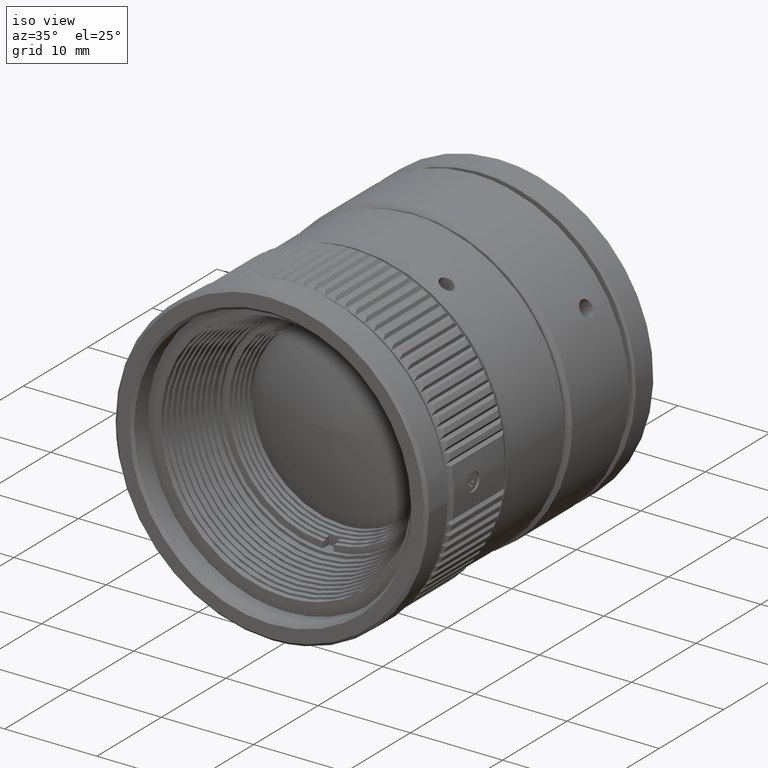
[diagram: clean part render]
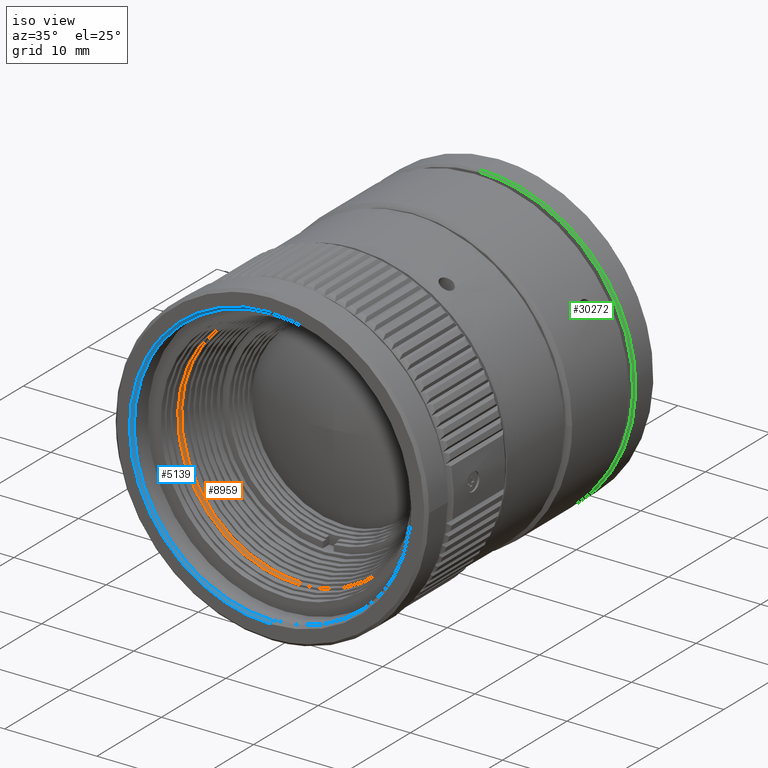
[diagram: same view with three faces highlighted in distinct colors, each labeled with its STEP entity id]
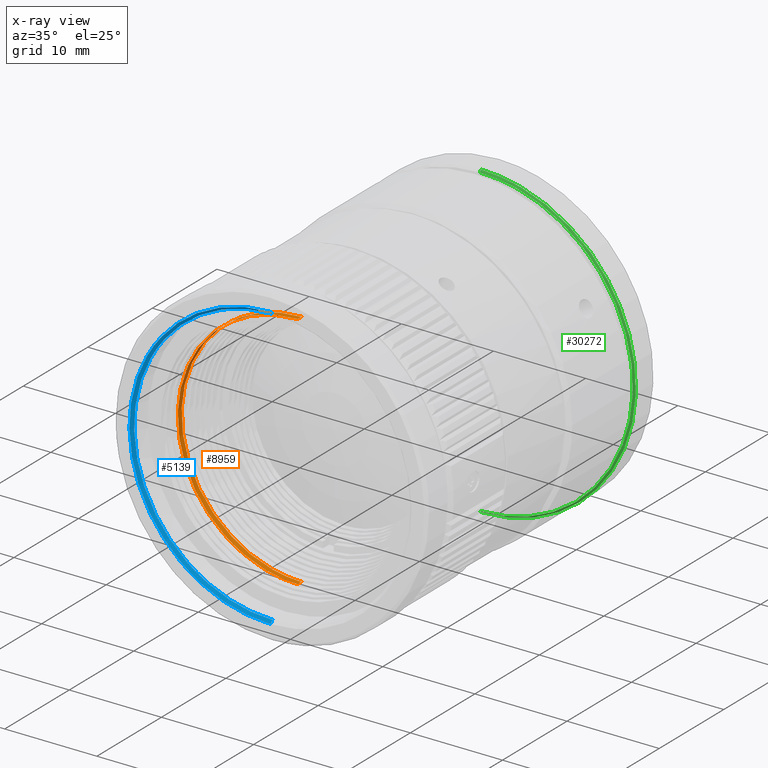
[diagram: x-ray of the same camera — body ghosted, the three highlighted faces saturated]
A machine part, iso view with three faces highlighted in distinct colors.
The next image is the same camera in x-ray (body ghosted, the three faces saturated) — at least one of them is partly hidden behind the body in this view.
Their STEP definitions:

[orange] entity #8959 — the highlighted cylindrical surface (partial cylindrical patch) has radius 13 mm, axis along (0, 1, 0).
#11 = DIRECTION ( 'NONE',  ( 0.000000000000000000, 0.000000000000000000, 1.000000000000000000 ) ) ;
#311 = CARTESIAN_POINT ( 'NONE',  ( -8.588573624669987083, -8.303429865530997489, 9.796253780342262019 ) ) ;
#581 = CARTESIAN_POINT ( 'NONE',  ( -12.58364497740233290, -8.303429865530997489, 3.373731482779658286 ) ) ;
#854 = CARTESIAN_POINT ( 'NONE',  ( -9.796253780339595707, -8.303429865530995713, -8.588573624671273166 ) ) ;
#2911 = CARTESIAN_POINT ( 'NONE',  ( -13.00000000000000711, -8.903429865530998910, -1.701696020694428491 ) ) ;
#3454 = CARTESIAN_POINT ( 'NONE',  ( -10.39566895117636314, -8.903429865530997134, -7.989107359673867315 ) ) ;
#4126 = CARTESIAN_POINT ( 'NONE',  ( 0.000000000000000000, -8.903429865530998910, 0.000000000000000000 ) ) ;
#4427 = CARTESIAN_POINT ( 'NONE',  ( -1.698798406687350937, -8.303429865530999265, -12.91673621508067171 ) ) ;
#4954 = CARTESIAN_POINT ( 'NONE',  ( -3.373549965731950540, -8.303429865530999265, -12.58368107540333192 ) ) ;
#5016 = CARTESIAN_POINT ( 'NONE',  ( 1.639601717919974898E-15, -8.303429865530979725, -13.00000000000000000 ) ) ;
#6532 = CARTESIAN_POINT ( 'NONE',  ( -1.061360559261039923E-15, -8.303429865530979725, 13.00000000000000000 ) ) ;
#6727 = VERTEX_POINT ( 'NONE', #7026 ) ;
#7026 = CARTESIAN_POINT ( 'NONE',  ( -1.061360559261039923E-15, -8.303429865530979725, 13.00000000000000000 ) ) ;
#7474 = EDGE_LOOP ( 'NONE', ( #34547, #49273, #41250, #39311 ) ) ;
#7754 = CARTESIAN_POINT ( 'NONE',  ( -7.989107359673917941, -8.903429865530998910, -10.39566895117632228 ) ) ;
#8212 = CARTESIAN_POINT ( 'NONE',  ( -0.8537772348334131678, -8.303429865531002818, 13.00000000000000000 ) ) ;
#8470 = CARTESIAN_POINT ( 'NONE',  ( -7.932473916755448329, -8.303429865530999265, -10.33470089529719793 ) ) ;
#8740 = CARTESIAN_POINT ( 'NONE',  ( -11.28350902456766747, -8.303429865530999265, 6.512352141756948321 ) ) ;
#8959 = ADVANCED_FACE ( 'NONE', ( #33731 ), #40821, .F. ) ;
#8999 = CARTESIAN_POINT ( 'NONE',  ( -5.763853529118214247, -8.303429865530999265, -11.68367140628569523 ) ) ;
#11029 = CARTESIAN_POINT ( 'NONE',  ( -6.547046744821646946, -8.903429865530997134, 11.35922304860537579 ) ) ;
#11525 = EDGE_CURVE ( 'NONE', #6727, #27783, #48979, .T. ) ;
#11745 = DIRECTION ( 'NONE',  ( 0.000000000000000000, 1.000000000000000000, 0.000000000000000000 ) ) ;
#12053 = CARTESIAN_POINT ( 'NONE',  ( -10.33470089529853198, -8.303429865530999265, 7.932473916752749155 ) ) ;
#12324 = CARTESIAN_POINT ( 'NONE',  ( -6.512392286182882906, -8.303429865530999265, 11.28356910494509791 ) ) ;
#12842 = CARTESIAN_POINT ( 'NONE',  ( -12.91677231308167073, -8.303429865531002818, 1.698616889639644523 ) ) ;
#13108 = CARTESIAN_POINT ( 'NONE',  ( -12.99996387097336736, -8.303429865530999265, -0.8539588275646948778 ) ) ;
#13692 = CARTESIAN_POINT ( 'NONE',  ( -2.727375780136251313E-14, -8.503429865530977239, -13.00000000000000000 ) ) ;
#15121 = CARTESIAN_POINT ( 'NONE',  ( -1.701696020694417832, -8.903429865530998910, 13.00000000000001066 ) ) ;
#15406 = CARTESIAN_POINT ( 'NONE',  ( -11.35922304860537047, -8.903429865531000686, -6.547046744821660269 ) ) ;
#15678 = CARTESIAN_POINT ( 'NONE',  ( -11.35922304860532783, -8.903429865530998910, 6.547046744821737541 ) ) ;
#16001 = EDGE_CURVE ( 'NONE', #27783, #29404, #50903, .T. ) ;
#16217 = CARTESIAN_POINT ( 'NONE',  ( -3.402722496670669727, -8.903429865530998910, -12.66164479668810117 ) ) ;
#16408 = CARTESIAN_POINT ( 'NONE',  ( -6.512352141754249146, -8.303429865530999265, -11.28350902456899618 ) ) ;
#16928 = CARTESIAN_POINT ( 'NONE',  ( -12.33719643901015317, -8.303429865531001042, 4.185915712368913688 ) ) ;
#17200 = CARTESIAN_POINT ( 'NONE',  ( -11.28356910494236764, -8.303429865530999265, -6.512392286186910795 ) ) ;
#19484 = CARTESIAN_POINT ( 'NONE',  ( -6.547046744821716224, -8.903429865530995357, -11.35922304860533671 ) ) ;
#19595 = CARTESIAN_POINT ( 'NONE',  ( 1.639601717919974898E-15, -8.303429865530979725, -13.00000000000000000 ) ) ;
#20486 = CARTESIAN_POINT ( 'NONE',  ( -0.8534070112841308786, -8.303429865530997489, -13.00000000000000178 ) ) ;
#20756 = CARTESIAN_POINT ( 'NONE',  ( -12.91684318271994059, -8.303429865530999265, -1.698630986480425431 ) ) ;
#21015 = CARTESIAN_POINT ( 'NONE',  ( -3.373717385937681890, -8.303429865531001042, 12.58357410776456753 ) ) ;
#24369 = CARTESIAN_POINT ( 'NONE',  ( -10.39566895117630807, -8.903429865530998910, 7.989107359673936593 ) ) ;
#25081 = CARTESIAN_POINT ( 'NONE',  ( -10.33464081492383002, -8.303429865530999265, -7.932433772322746712 ) ) ;
#27615 = CARTESIAN_POINT ( 'NONE',  ( -7.989107359673846886, -8.903429865530997134, 10.39566895117637735 ) ) ;
#27753 = CARTESIAN_POINT ( 'NONE',  ( 0.000000000000000000, -8.703429865530987186, 13.00000000000000000 ) ) ;
#27783 = VERTEX_POINT ( 'NONE', #19595 ) ;
#28638 = CARTESIAN_POINT ( 'NONE',  ( -13.00003612902662908, -8.303429865530999265, 0.8539588275646925464 ) ) ;
#29149 = CARTESIAN_POINT ( 'NONE',  ( -1.698630986481620031, -8.303429865530999265, 12.91684318271943965 ) ) ;
#29404 = VERTEX_POINT ( 'NONE', #40104 ) ;
#29681 = CARTESIAN_POINT ( 'NONE',  ( -4.185943364326932148, -8.303429865530999265, 12.33726319674944882 ) ) ;
#30006 = CARTESIAN_POINT ( 'NONE',  ( -2.727375780136251313E-14, -8.703429865530987186, -13.00000000000000000 ) ) ;
#30263 = EDGE_CURVE ( 'NONE', #37408, #6727, #50577, .T. ) ;
#32232 = CARTESIAN_POINT ( 'NONE',  ( -1.061360559261039923E-15, -8.903429865530998910, 13.00000000000000000 ) ) ;
#33731 = FACE_OUTER_BOUND ( 'NONE', #7474, .T. ) ;
#33769 = CARTESIAN_POINT ( 'NONE',  ( -8.588522530510601882, -8.303429865531001042, -9.796202686178977714 ) ) ;
#34547 = ORIENTED_EDGE ( 'NONE', *, *, #16001, .F. ) ;
#34792 = EDGE_CURVE ( 'NONE', #37408, #29404, #48609, .T. ) ;
#35636 = CARTESIAN_POINT ( 'NONE',  ( -1.061360559261039923E-15, -8.903429865530998910, 13.00000000000000000 ) ) ;
#36051 = CARTESIAN_POINT ( 'NONE',  ( -1.701696020694498879, -8.903429865530997134, -13.00000000000000178 ) ) ;
#36602 = CARTESIAN_POINT ( 'NONE',  ( -1.061360559261039923E-15, -8.903429865530998910, 13.00000000000000000 ) ) ;
#36872 = CARTESIAN_POINT ( 'NONE',  ( -12.66164479668808696, -8.903429865530993581, 3.402722496670688823 ) ) ;
#37332 = CARTESIAN_POINT ( 'NONE',  ( -12.33726319674944527, -8.303429865530997489, -4.185943364326901950 ) ) ;
#37408 = VERTEX_POINT ( 'NONE', #32232 ) ;
#37601 = CARTESIAN_POINT ( 'NONE',  ( -5.763825877165468015, -8.303429865530999265, 11.68360464854404945 ) ) ;
#37856 = CARTESIAN_POINT ( 'NONE',  ( -9.796202686180317087, -8.303429865530999265, 8.588522530507932018 ) ) ;
#39311 = ORIENTED_EDGE ( 'NONE', *, *, #34792, .T. ) ;
#40104 = CARTESIAN_POINT ( 'NONE',  ( 4.831194006021039617E-16, -8.903429865530998910, -13.00000000000000000 ) ) ;
#40120 = CARTESIAN_POINT ( 'NONE',  ( -12.99999999999999289, -8.903429865530998910, 1.701696020694515088 ) ) ;
#40821 = CYLINDRICAL_SURFACE ( 'NONE', #49168, 13.00000000000000000 ) ;
#40931 = CARTESIAN_POINT ( 'NONE',  ( -3.402722496670592900, -8.903429865530997134, 12.66164479668811715 ) ) ;
#41124 = CARTESIAN_POINT ( 'NONE',  ( -11.68360464854404768, -8.303429865531001042, -5.763825877165460909 ) ) ;
#41250 = ORIENTED_EDGE ( 'NONE', *, *, #30263, .F. ) ;
#41654 = CARTESIAN_POINT ( 'NONE',  ( -4.185915712374083775, -8.303429865530999265, -12.33719643900777818 ) ) ;
#43761 = CARTESIAN_POINT ( 'NONE',  ( 0.000000000000000000, -8.503429865530977239, 13.00000000000000000 ) ) ;
#45186 = CARTESIAN_POINT ( 'NONE',  ( -11.68367140628334866, -8.303429865530999265, 5.763853529123381669 ) ) ;
#45711 = CARTESIAN_POINT ( 'NONE',  ( -7.932433772326814569, -8.303429865530997489, 10.33464081492109621 ) ) ;
#45985 = CARTESIAN_POINT ( 'NONE',  ( -1.061360559261039923E-15, -8.303429865530979725, 13.00000000000000000 ) ) ;
#46249 = CARTESIAN_POINT ( 'NONE',  ( 1.639601717919974898E-15, -8.303429865530979725, -13.00000000000000000 ) ) ;
#48609 = B_SPLINE_CURVE_WITH_KNOTS ( 'NONE', 3,
 ( #36602, #15121, #40931, #11029, #27615, #24369, #15678, #36872, #40120, #2911, #53439, #15406, #3454, #7754, #19484, #16217, #36051, #53175 ),
 .UNSPECIFIED., .F., .F.,
 ( 4, 2, 2, 2, 2, 2, 2, 2, 4 ),
 ( 0.000000000000000000, 0.1250000000000001110, 0.2500000000000001665, 0.3750000000000001665, 0.5000000000000001110, 0.6250000000000001110, 0.7500000000000001110, 0.8750000000000001110, 1.000000000000000000 ),
 .UNSPECIFIED. ) ;
#48979 = B_SPLINE_CURVE_WITH_KNOTS ( 'NONE', 3,
 ( #45985, #8212, #29149, #21015, #29681, #37601, #12324, #45711, #311, #37856, #12053, #8740, #45186, #16928, #581, #12842, #28638, #13108, #20756, #53639, #37332, #41124, #17200, #25081, #854, #33769, #8470, #16408, #8999, #41654, #4954, #4427, #20486, #46249 ),
 .UNSPECIFIED., .F., .F.,
 ( 4, 2, 2, 2, 2, 2, 2, 2, 2, 2, 2, 2, 2, 2, 2, 2, 4 ),
 ( 0.000000000000000000, 0.06250000000000006939, 0.1250000000000001388, 0.1875000000000002220, 0.2500000000000002220, 0.3125000000000002220, 0.3750000000000002220, 0.4375000000000002776, 0.5000000000000002220, 0.5625000000000003331, 0.6250000000000002220, 0.6875000000000003331, 0.7500000000000002220, 0.8125000000000002220, 0.8750000000000002220, 0.9375000000000001110, 1.000000000000000000 ),
 .UNSPECIFIED. ) ;
#49168 = AXIS2_PLACEMENT_3D ( 'NONE', #4126, #11745, #11 ) ;
#49273 = ORIENTED_EDGE ( 'NONE', *, *, #11525, .F. ) ;
#50577 = B_SPLINE_CURVE_WITH_KNOTS ( 'NONE', 3,
 ( #35636, #27753, #43761, #6532 ),
 .UNSPECIFIED., .F., .F.,
 ( 4, 4 ),
 ( 0.000000000000000000, 1.000000000000000000 ),
 .UNSPECIFIED. ) ;
#50665 = CARTESIAN_POINT ( 'NONE',  ( 4.831194006021039617E-16, -8.903429865530998910, -13.00000000000000000 ) ) ;
#50903 = B_SPLINE_CURVE_WITH_KNOTS ( 'NONE', 3,
 ( #5016, #13692, #30006, #50665 ),
 .UNSPECIFIED., .F., .F.,
 ( 4, 4 ),
 ( 0.000000000000000000, 1.000000000000000000 ),
 .UNSPECIFIED. ) ;
#53175 = CARTESIAN_POINT ( 'NONE',  ( 4.831194006021039617E-16, -8.903429865530998910, -13.00000000000000000 ) ) ;
#53439 = CARTESIAN_POINT ( 'NONE',  ( -12.66164479668811360, -8.903429865530997134, -3.402722496670603558 ) ) ;
#53639 = CARTESIAN_POINT ( 'NONE',  ( -12.58357410776406482, -8.303429865530999265, -3.373717385938932445 ) ) ;

[blue] entity #5139 — the highlighted conical surface has half-angle 45 deg.
#178 = CARTESIAN_POINT ( 'NONE',  ( -1.353267786805369794E-14, -12.80342804461026063, 15.00000091018464943 ) ) ;
#952 = CARTESIAN_POINT ( 'NONE',  ( -12.23490565875189162, -13.10342986553000344, 9.402567098117263100 ) ) ;
#1454 = FACE_OUTER_BOUND ( 'NONE', #19208, .T. ) ;
#1726 = CARTESIAN_POINT ( 'NONE',  ( -7.554284705563518720, -12.80342804461025707, 13.10679582531384746 ) ) ;
#1999 = DIRECTION ( 'NONE',  ( 9.641368951329510470E-33, -1.000000000000000000, -2.267611836428154913E-16 ) ) ;
#2704 = ORIENTED_EDGE ( 'NONE', *, *, #19912, .F. ) ;
#4532 = B_SPLINE_CURVE_WITH_KNOTS ( 'NONE', 3,
 ( #42013, #21633, #38216, #16040, #21376, #952, #50698, #20125, #36704, #53274, #18361, #30586, #5567, #35466, #5830, #51232, #22432, #30319 ),
 .UNSPECIFIED., .F., .F.,
 ( 4, 2, 2, 2, 2, 2, 2, 2, 4 ),
 ( 0.000000000000000000, 0.1250000000000000000, 0.2500000000000000000, 0.3750000000000000000, 0.5000000000000000000, 0.6250000000000000000, 0.7500000000000000000, 0.8750000000000000000, 1.000000000000000000 ),
 .UNSPECIFIED. ) ;
#5139 = ADVANCED_FACE ( 'NONE', ( #1454 ), #43994, .F. ) ;
#5567 = CARTESIAN_POINT ( 'NONE',  ( -12.23490565875183300, -13.10342986552999811, -9.402567098117277311 ) ) ;
#5794 = CARTESIAN_POINT ( 'NONE',  ( -11.99500263597272465, -12.80342804461025885, 9.218200799623691211 ) ) ;
#5830 = CARTESIAN_POINT ( 'NONE',  ( -7.705372270176754412, -13.10342986552999811, -13.36893498716877637 ) ) ;
#6325 = CARTESIAN_POINT ( 'NONE',  ( -14.99999999999999112, -12.80342804461025885, -1.963495408493671546 ) ) ;
#6872 = CARTESIAN_POINT ( 'NONE',  ( -13.10679582531389187, -12.80342804461025885, 7.554284705563454771 ) ) ;
#7598 = B_SPLINE_CURVE_WITH_KNOTS ( 'NONE', 3,
 ( #178, #13234, #16801, #41778 ),
 .UNSPECIFIED., .F., .F.,
 ( 4, 4 ),
 ( 0.000000000000000000, 1.000000000000000000 ),
 .UNSPECIFIED. ) ;
#9253 = EDGE_CURVE ( 'NONE', #38692, #14526, #4532, .T. ) ;
#10566 = ORIENTED_EDGE ( 'NONE', *, *, #15550, .T. ) ;
#10890 = AXIS2_PLACEMENT_3D ( 'NONE', #43832, #1999, #31360 ) ;
#12641 = VERTEX_POINT ( 'NONE', #29495 ) ;
#13234 = CARTESIAN_POINT ( 'NONE',  ( -9.239484547960855122E-14, -12.90342865158351415, 15.10000245162001775 ) ) ;
#14526 = VERTEX_POINT ( 'NONE', #24146 ) ;
#15550 = EDGE_CURVE ( 'NONE', #18967, #38692, #7598, .T. ) ;
#15892 = ORIENTED_EDGE ( 'NONE', *, *, #9253, .T. ) ;
#16040 = CARTESIAN_POINT ( 'NONE',  ( -7.705372270176829907, -13.10342986552999989, 13.36893498716879947 ) ) ;
#16362 = CARTESIAN_POINT ( 'NONE',  ( 2.643725981652256546E-15, -12.90342865158350705, -15.10000245161994137 ) ) ;
#16801 = CARTESIAN_POINT ( 'NONE',  ( -9.260464494089423167E-14, -13.00342925855675702, 15.20000308287067448 ) ) ;
#17950 = B_SPLINE_CURVE_WITH_KNOTS ( 'NONE', 3,
 ( #26995, #35701, #43558, #1726, #22655, #5794, #6872, #23473, #35144, #6325, #23194, #44107, #39766, #38962, #18320, #22924, #39491, #22391 ),
 .UNSPECIFIED., .F., .F.,
 ( 4, 2, 2, 2, 2, 2, 2, 2, 4 ),
 ( 0.000000000000000000, 0.1250000000000000000, 0.2500000000000000000, 0.3750000000000000000, 0.5000000000000000000, 0.6250000000000000000, 0.7500000000000000000, 0.8750000000000000000, 1.000000000000000000 ),
 .UNSPECIFIED. ) ;
#18320 = CARTESIAN_POINT ( 'NONE',  ( -7.554284705563442337, -12.80342804461025530, -13.10679582531389542 ) ) ;
#18361 = CARTESIAN_POINT ( 'NONE',  ( -14.90178557047793717, -13.10342986552999811, -4.004743602860396656 ) ) ;
#18967 = VERTEX_POINT ( 'NONE', #38305 ) ;
#19208 = EDGE_LOOP ( 'NONE', ( #10566, #15892, #40068, #2704 ) ) ;
#19912 = EDGE_CURVE ( 'NONE', #18967, #12641, #17950, .T. ) ;
#20125 = CARTESIAN_POINT ( 'NONE',  ( -14.90178557047796382, -13.10342986553000166, 4.004743602860370899 ) ) ;
#21376 = CARTESIAN_POINT ( 'NONE',  ( -9.402567098117351918, -13.10342986553000166, 12.23490565875182590 ) ) ;
#21633 = CARTESIAN_POINT ( 'NONE',  ( -2.002765802840929421, -13.10342986552999989, 15.30000371412133298 ) ) ;
#22391 = CARTESIAN_POINT ( 'NONE',  ( -3.219463113978064824E-14, -12.80342804461026063, -15.00000091018464943 ) ) ;
#22432 = CARTESIAN_POINT ( 'NONE',  ( -2.002765802840832610, -13.10342986552999989, -15.30000371412127436 ) ) ;
#22655 = CARTESIAN_POINT ( 'NONE',  ( -9.218200799623753383, -12.80342804461025885, 11.99500263597267669 ) ) ;
#22924 = CARTESIAN_POINT ( 'NONE',  ( -3.926218265389146644, -12.80342804461025707, -14.60959015002474892 ) ) ;
#23194 = CARTESIAN_POINT ( 'NONE',  ( -14.60959015002472583, -12.80342804461025707, -3.926218265389256334 ) ) ;
#23473 = CARTESIAN_POINT ( 'NONE',  ( -14.60959015002474715, -12.80342804461025885, 3.926218265389159079 ) ) ;
#24146 = CARTESIAN_POINT ( 'NONE',  ( -6.138622053889209190E-14, -13.10342986552999989, -15.30000371412124949 ) ) ;
#26995 = CARTESIAN_POINT ( 'NONE',  ( -1.353267786805369794E-14, -12.80342804461026063, 15.00000091018464943 ) ) ;
#29495 = CARTESIAN_POINT ( 'NONE',  ( -3.219463113978064824E-14, -12.80342804461026063, -15.00000091018464943 ) ) ;
#30319 = CARTESIAN_POINT ( 'NONE',  ( -6.138622053889209190E-14, -13.10342986552999989, -15.30000371412124949 ) ) ;
#30586 = CARTESIAN_POINT ( 'NONE',  ( -13.36893498716881012, -13.10342986552999989, -7.705372270176757965 ) ) ;
#31360 = DIRECTION ( 'NONE',  ( 0.000000000000000000, 2.267611836428151955E-16, -1.000000000000000000 ) ) ;
#31887 = CARTESIAN_POINT ( 'NONE',  ( -5.888794046216658801E-14, -13.10342986552999989, 15.30000371412129923 ) ) ;
#32936 = CARTESIAN_POINT ( 'NONE',  ( -3.219463113978064824E-14, -12.80342804461026063, -15.00000091018464943 ) ) ;
#35144 = CARTESIAN_POINT ( 'NONE',  ( -15.00000000000000711, -12.80342804461025885, 1.963495408493571848 ) ) ;
#35466 = CARTESIAN_POINT ( 'NONE',  ( -9.402567098117266653, -13.10342986552999989, -12.23490565875181524 ) ) ;
#35701 = CARTESIAN_POINT ( 'NONE',  ( -1.963495408493652894, -12.80342804461025885, 14.99999999999999289 ) ) ;
#36704 = CARTESIAN_POINT ( 'NONE',  ( -15.30000371412136673, -13.10342986553000166, 2.002765802840821951 ) ) ;
#37029 = CARTESIAN_POINT ( 'NONE',  ( -6.138622053889209190E-14, -13.10342986552999989, -15.30000371412124949 ) ) ;
#38216 = CARTESIAN_POINT ( 'NONE',  ( -4.004743602860470375, -13.10342986553000344, 14.90178557047792118 ) ) ;
#38305 = CARTESIAN_POINT ( 'NONE',  ( -1.353267786805369794E-14, -12.80342804461026063, 15.00000091018464943 ) ) ;
#38692 = VERTEX_POINT ( 'NONE', #31887 ) ;
#38962 = CARTESIAN_POINT ( 'NONE',  ( -9.218200799623673447, -12.80342804461025707, -11.99500263597274419 ) ) ;
#39491 = CARTESIAN_POINT ( 'NONE',  ( -1.963495408493558747, -12.80342804461025707, -15.00000000000001243 ) ) ;
#39766 = CARTESIAN_POINT ( 'NONE',  ( -11.99500263597266603, -12.80342804461025885, -9.218200799623772923 ) ) ;
#40068 = ORIENTED_EDGE ( 'NONE', *, *, #47276, .T. ) ;
#41611 = CARTESIAN_POINT ( 'NONE',  ( 3.063324904223624546E-15, -13.00342925855675347, -15.20000308287060520 ) ) ;
#41778 = CARTESIAN_POINT ( 'NONE',  ( -5.888794046216658801E-14, -13.10342986552999989, 15.30000371412129923 ) ) ;
#42013 = CARTESIAN_POINT ( 'NONE',  ( -5.888794046216658801E-14, -13.10342986552999989, 15.30000371412129923 ) ) ;
#43558 = CARTESIAN_POINT ( 'NONE',  ( -3.926218265389233686, -12.80342804461026063, 14.60959015002472938 ) ) ;
#43832 = CARTESIAN_POINT ( 'NONE',  ( -6.071532165918828617E-14, -13.10342986552999989, 3.729655473350134622E-14 ) ) ;
#43994 = CONICAL_SURFACE ( 'NONE', #10890, 15.30000371412129923, 0.7853982847837752690 ) ;
#44107 = CARTESIAN_POINT ( 'NONE',  ( -13.10679582531384035, -12.80342804461025707, -7.554284705563541813 ) ) ;
#47276 = EDGE_CURVE ( 'NONE', #14526, #12641, #52169, .T. ) ;
#50698 = CARTESIAN_POINT ( 'NONE',  ( -13.36893498716886519, -13.10342986553000166, 7.705372270176741978 ) ) ;
#51232 = CARTESIAN_POINT ( 'NONE',  ( -4.004743602860384222, -13.10342986553000166, -14.90178557047787322 ) ) ;
#52169 = B_SPLINE_CURVE_WITH_KNOTS ( 'NONE', 3,
 ( #37029, #41611, #16362, #32936 ),
 .UNSPECIFIED., .F., .F.,
 ( 4, 4 ),
 ( 0.000000000000000000, 1.000000000000000000 ),
 .UNSPECIFIED. ) ;
#53274 = CARTESIAN_POINT ( 'NONE',  ( -15.30000371412135785, -13.10342986553000166, -2.002765802840850817 ) ) ;

[green] entity #30272 — the highlighted conical surface has half-angle 45 deg.
#183 = B_SPLINE_CURVE_WITH_KNOTS ( 'NONE', 3,
 ( #14288, #22186, #30875, #43362, #2071, #47420, #13491, #30072, #35208, #46627, #1250, #10192, #17855, #38768, #9387, #34413, #10469, #42553, #27063, #26792, #30346, #43629, #47156, #5337, #6394, #21927, #50990, #13755, #43085, #46893, #9660, #26262, #42824, #5595 ),
 .UNSPECIFIED., .F., .F.,
 ( 4, 2, 2, 2, 2, 2, 2, 2, 2, 2, 2, 2, 2, 2, 2, 2, 4 ),
 ( 0.000000000000000000, 0.06250000000000008327, 0.1250000000000001665, 0.1875000000000001665, 0.2500000000000001665, 0.3125000000000001665, 0.3750000000000001665, 0.4375000000000001110, 0.5000000000000001110, 0.5625000000000002220, 0.6250000000000001110, 0.6875000000000001110, 0.7500000000000001110, 0.8125000000000001110, 0.8750000000000000000, 0.9375000000000000000, 1.000000000000000000 ),
 .UNSPECIFIED. ) ;
#590 = CARTESIAN_POINT ( 'NONE',  ( 12.65689779222781119, 19.53000085730898761, 11.10188884322479019 ) ) ;
#1250 = CARTESIAN_POINT ( 'NONE',  ( 13.19701284611407566, 19.32999999999999829, -10.12841862705516860 ) ) ;
#2071 = CARTESIAN_POINT ( 'NONE',  ( 5.345867257960331465, 19.32999999999999829, -15.75333981115151971 ) ) ;
#2081 = ORIENTED_EDGE ( 'NONE', *, *, #20974, .T. ) ;
#2149 = VERTEX_POINT ( 'NONE', #24196 ) ;
#2679 = EDGE_CURVE ( 'NONE', #13884, #30942, #46217, .T. ) ;
#3386 = CARTESIAN_POINT ( 'NONE',  ( 10.24782798077317025, 19.53000085730900182, -13.35780742811865984 ) ) ;
#3860 = CARTESIAN_POINT ( 'NONE',  ( 5.249492390866770168E-23, 19.53000042865545183, 16.79999957134645072 ) ) ;
#3917 = CARTESIAN_POINT ( 'NONE',  ( 11.10188884322476532, 19.53000085730899471, -12.65689779222780764 ) ) ;
#4701 = CARTESIAN_POINT ( 'NONE',  ( 16.79999914269284744, 19.53000085730899471, -1.099557372645801889 ) ) ;
#4854 = B_SPLINE_CURVE_WITH_KNOTS ( 'NONE', 3,
 ( #15614, #24032, #40866, #20764, #20231, #53114, #40602, #3386, #3917, #36539, #32724, #49288, #28646, #20493, #49812, #21284, #4701, #17207, #4960, #13633, #21540, #8747, #34561, #37865, #590, #33776, #17478, #25876, #50344, #5477, #34292, #42432, #13374, #18001 ),
 .UNSPECIFIED., .F., .F.,
 ( 4, 2, 2, 2, 2, 2, 2, 2, 2, 2, 2, 2, 2, 2, 2, 2, 4 ),
 ( 0.000000000000000000, 0.06250000000000001388, 0.1250000000000000000, 0.1874999999999999722, 0.2499999999999999722, 0.3124999999999999445, 0.3749999999999999445, 0.4374999999999999445, 0.4999999999999998890, 0.5624999999999998890, 0.6249999999999998890, 0.6874999999999998890, 0.7499999999999998890, 0.8125000000000000000, 0.8750000000000000000, 0.9375000000000000000, 1.000000000000000000 ),
 .UNSPECIFIED. ) ;
#4960 = CARTESIAN_POINT ( 'NONE',  ( 16.69170487184470986, 19.53000085730899116, 2.199087556568776414 ) ) ;
#5337 = CARTESIAN_POINT ( 'NONE',  ( 13.19707288048458338, 19.33000000000000185, 10.12845874075405384 ) ) ;
#5477 = CARTESIAN_POINT ( 'NONE',  ( 5.413222784246918273, 19.53000085730898405, 15.94195774358752793 ) ) ;
#5595 = CARTESIAN_POINT ( 'NONE',  ( -1.355275721890809844E-15, 19.33000056468930339, 16.59999915283014715 ) ) ;
#6394 = CARTESIAN_POINT ( 'NONE',  ( 12.50841338898762878, 19.32999999999999829, 10.96747949328737803 ) ) ;
#8589 = CARTESIAN_POINT ( 'NONE',  ( 1.987934045729399925E-16, 19.33000056468930339, -16.59999915283010097 ) ) ;
#8747 = CARTESIAN_POINT ( 'NONE',  ( 15.10039296469464531, 19.53000085730898761, 7.444939887065612716 ) ) ;
#9387 = CARTESIAN_POINT ( 'NONE',  ( 16.06842806344513619, 19.33000000000000185, -4.307160493311151583 ) ) ;
#9660 = CARTESIAN_POINT ( 'NONE',  ( 4.307342077849397377, 19.32999999999999829, 16.06839193778306552 ) ) ;
#10192 = CARTESIAN_POINT ( 'NONE',  ( 14.40777687353841685, 19.33000000000000185, -8.316512167870831362 ) ) ;
#10261 = ORIENTED_EDGE ( 'NONE', *, *, #2679, .F. ) ;
#10469 = CARTESIAN_POINT ( 'NONE',  ( 16.59996305146523454, 19.32999999999999829, -1.089604806983601293 ) ) ;
#13374 = CARTESIAN_POINT ( 'NONE',  ( 1.099557372645805220, 19.53000085730898405, 16.79999914269285455 ) ) ;
#13491 = CARTESIAN_POINT ( 'NONE',  ( 8.316472054182634466, 19.32999999999999829, -14.40771683916063495 ) ) ;
#13633 = CARTESIAN_POINT ( 'NONE',  ( 16.26267886803535490, 19.53000085730899471, 4.355946928668488205 ) ) ;
#13755 = CARTESIAN_POINT ( 'NONE',  ( 8.316512167868586047, 19.33000000000000185, 14.40777687353766545 ) ) ;
#13884 = VERTEX_POINT ( 'NONE', #37834 ) ;
#14288 = CARTESIAN_POINT ( 'NONE',  ( 1.987934045729399925E-16, 19.33000056468930339, -16.59999915283010097 ) ) ;
#15614 = CARTESIAN_POINT ( 'NONE',  ( -5.249492246422019637E-23, 19.53000042865545183, -16.79999957134640098 ) ) ;
#16157 = CARTESIAN_POINT ( 'NONE',  ( 5.249492390866770168E-23, 19.53000042865545183, 16.79999957134645072 ) ) ;
#17081 = B_SPLINE_CURVE_WITH_KNOTS ( 'NONE', 3,
 ( #41134, #28650, #37343, #16157 ),
 .UNSPECIFIED., .F., .F.,
 ( 4, 4 ),
 ( 0.000000000000000000, 1.000000000000000000 ),
 .UNSPECIFIED. ) ;
#17207 = CARTESIAN_POINT ( 'NONE',  ( 16.79999914269284744, 19.53000085730898405, 1.099557372645809217 ) ) ;
#17478 = CARTESIAN_POINT ( 'NONE',  ( 10.24782798077319868, 19.53000085730898761, 13.35780742811866517 ) ) ;
#17855 = CARTESIAN_POINT ( 'NONE',  ( 14.91939239623481228, 19.32999999999999829, -7.359194417364934182 ) ) ;
#18001 = CARTESIAN_POINT ( 'NONE',  ( 5.249492390866770168E-23, 19.53000042865545183, 16.79999957134645072 ) ) ;
#18557 = ORIENTED_EDGE ( 'NONE', *, *, #33878, .F. ) ;
#20231 = CARTESIAN_POINT ( 'NONE',  ( 5.413222784246892516, 19.53000085730899826, -15.94195774358751017 ) ) ;
#20493 = CARTESIAN_POINT ( 'NONE',  ( 15.94195774358751372, 19.53000085730899826, -5.413222784246916497 ) ) ;
#20764 = CARTESIAN_POINT ( 'NONE',  ( 4.355946928668452678, 19.53000085730900182, -16.26267886803534779 ) ) ;
#20974 = EDGE_CURVE ( 'NONE', #13884, #39304, #4854, .T. ) ;
#21284 = CARTESIAN_POINT ( 'NONE',  ( 16.69170487184470986, 19.53000085730899471, -2.199087556568770196 ) ) ;
#21540 = CARTESIAN_POINT ( 'NONE',  ( 15.94195774358751727, 19.53000085730898761, 5.413222784246922714 ) ) ;
#21927 = CARTESIAN_POINT ( 'NONE',  ( 10.96753054832656815, 19.33000000000000185, 12.50846444402688284 ) ) ;
#22186 = CARTESIAN_POINT ( 'NONE',  ( 1.089786332259765844, 19.33000000000000185, -16.59999915283010452 ) ) ;
#22437 = CARTESIAN_POINT ( 'NONE',  ( -3.496635437115704427E-14, 19.39666751712564619, -16.66666581611766418 ) ) ;
#23131 = CARTESIAN_POINT ( 'NONE',  ( 0.000000000000000000, 19.53000085730900182, 2.081668171172170091E-14 ) ) ;
#24032 = CARTESIAN_POINT ( 'NONE',  ( 1.099557372645771691, 19.53000085730900182, -16.79999914269283678 ) ) ;
#24196 = CARTESIAN_POINT ( 'NONE',  ( -1.355275721890809844E-15, 19.33000056468930339, 16.59999915283014715 ) ) ;
#25876 = CARTESIAN_POINT ( 'NONE',  ( 8.419330896096766992, 19.53000085730898761, 14.57957011959717164 ) ) ;
#26262 = CARTESIAN_POINT ( 'NONE',  ( 2.169656282536800429, 19.33000000000000185, 16.49367770982072301 ) ) ;
#26792 = CARTESIAN_POINT ( 'NONE',  ( 16.06849887882816930, 19.32999999999999474, 4.307174579371499057 ) ) ;
#27063 = CARTESIAN_POINT ( 'NONE',  ( 16.49357076877563699, 19.32999999999999829, 2.169823781014701414 ) ) ;
#27199 = FACE_OUTER_BOUND ( 'NONE', #36417, .T. ) ;
#27472 = ORIENTED_EDGE ( 'NONE', *, *, #45917, .F. ) ;
#28646 = CARTESIAN_POINT ( 'NONE',  ( 15.10039296469463643, 19.53000085730899471, -7.444939887065608275 ) ) ;
#28650 = CARTESIAN_POINT ( 'NONE',  ( 6.993270874231406331E-14, 19.39666751712563908, 16.66666581611769971 ) ) ;
#30072 = CARTESIAN_POINT ( 'NONE',  ( 10.12845874074336372, 19.33000000000000185, -13.19707288049176519 ) ) ;
#30272 = ADVANCED_FACE ( 'NONE', ( #27199 ), #39029, .T. ) ;
#30346 = CARTESIAN_POINT ( 'NONE',  ( 15.75333981116171955, 19.32999999999999829, 5.345867257944976636 ) ) ;
#30875 = CARTESIAN_POINT ( 'NONE',  ( 2.169823781008098695, 19.32999999999999474, -16.49357076878210648 ) ) ;
#30942 = VERTEX_POINT ( 'NONE', #8589 ) ;
#32724 = CARTESIAN_POINT ( 'NONE',  ( 13.35780742811864563, 19.53000085730899116, -10.24782798077319157 ) ) ;
#33776 = CARTESIAN_POINT ( 'NONE',  ( 11.10188884322477954, 19.53000085730898405, 12.65689779222782008 ) ) ;
#33878 = EDGE_CURVE ( 'NONE', #30942, #2149, #183, .T. ) ;
#34292 = CARTESIAN_POINT ( 'NONE',  ( 4.355946928668479323, 19.53000085730898405, 16.26267886803535845 ) ) ;
#34413 = CARTESIAN_POINT ( 'NONE',  ( 16.49364158415867010, 19.32999999999999829, -2.169837867074948523 ) ) ;
#34561 = CARTESIAN_POINT ( 'NONE',  ( 14.57957011959716453, 19.53000085730898761, 8.419330896096774097 ) ) ;
#35208 = CARTESIAN_POINT ( 'NONE',  ( 10.96747949330116789, 19.32999999999999829, -12.50841338897036614 ) ) ;
#36417 = EDGE_LOOP ( 'NONE', ( #2081, #27472, #18557, #10261 ) ) ;
#36539 = CARTESIAN_POINT ( 'NONE',  ( 12.65689779222778988, 19.53000085730898761, -11.10188884322478131 ) ) ;
#37343 = CARTESIAN_POINT ( 'NONE',  ( 7.021243957738026625E-14, 19.46333418721730979, 16.73333247940527713 ) ) ;
#37834 = CARTESIAN_POINT ( 'NONE',  ( -5.249492246422019637E-23, 19.53000042865545183, -16.79999957134640098 ) ) ;
#37865 = CARTESIAN_POINT ( 'NONE',  ( 13.35780742811865807, 19.53000085730898405, 10.24782798077320223 ) ) ;
#38768 = CARTESIAN_POINT ( 'NONE',  ( 15.75340651777408496, 19.33000000000000185, -5.345894888760264863 ) ) ;
#39029 = CONICAL_SURFACE ( 'NONE', #52956, 16.79999914269285100, 0.7853981123667406194 ) ;
#39304 = VERTEX_POINT ( 'NONE', #3860 ) ;
#39699 = DIRECTION ( 'NONE',  ( 0.000000000000000000, 1.000000000000000000, 0.000000000000000000 ) ) ;
#40602 = CARTESIAN_POINT ( 'NONE',  ( 8.419330896096738570, 19.53000085730899116, -14.57957011959715743 ) ) ;
#40866 = CARTESIAN_POINT ( 'NONE',  ( 2.199087556568739554, 19.53000085730900537, -16.69170487184470275 ) ) ;
#41134 = CARTESIAN_POINT ( 'NONE',  ( -1.355275721890809844E-15, 19.33000056468930339, 16.59999915283014715 ) ) ;
#42432 = CARTESIAN_POINT ( 'NONE',  ( 2.199087556568769752, 19.53000085730897695, 16.69170487184472051 ) ) ;
#42553 = CARTESIAN_POINT ( 'NONE',  ( 16.60003525419496384, 19.32999999999999474, 1.089604806983603069 ) ) ;
#42824 = CARTESIAN_POINT ( 'NONE',  ( 1.090156555805766647, 19.32999999999999474, 16.59999915283013650 ) ) ;
#43085 = CARTESIAN_POINT ( 'NONE',  ( 7.359194417369697483, 19.32999999999999829, 14.91939239623109614 ) ) ;
#43362 = CARTESIAN_POINT ( 'NONE',  ( 4.307174579378098223, 19.32999999999999829, -16.06849887882158612 ) ) ;
#43629 = CARTESIAN_POINT ( 'NONE',  ( 14.91945910284717947, 19.33000000000000185, 7.359222048180306786 ) ) ;
#45366 = DIRECTION ( 'NONE',  ( 0.000000000000000000, 0.000000000000000000, 1.000000000000000000 ) ) ;
#45917 = EDGE_CURVE ( 'NONE', #2149, #39304, #17081, .T. ) ;
#46217 = B_SPLINE_CURVE_WITH_KNOTS ( 'NONE', 3,
 ( #50701, #51236, #22437, #46605 ),
 .UNSPECIFIED., .F., .F.,
 ( 4, 4 ),
 ( 0.000000000000000000, 1.000000000000000000 ),
 .UNSPECIFIED. ) ;
#46605 = CARTESIAN_POINT ( 'NONE',  ( 1.987934045729399925E-16, 19.33000056468930339, -16.59999915283010097 ) ) ;
#46627 = CARTESIAN_POINT ( 'NONE',  ( 12.50846444401303081, 19.33000000000000185, -10.96753054834383256 ) ) ;
#46893 = CARTESIAN_POINT ( 'NONE',  ( 5.345894888755498897, 19.33000000000000185, 15.75340651777781886 ) ) ;
#47156 = CARTESIAN_POINT ( 'NONE',  ( 14.40771683916790913, 19.32999999999999829, 8.316472054172027839 ) ) ;
#47420 = CARTESIAN_POINT ( 'NONE',  ( 7.359222048164866692, 19.33000000000000185, -14.91945910285738464 ) ) ;
#49288 = CARTESIAN_POINT ( 'NONE',  ( 14.57957011959715210, 19.53000085730899116, -8.419330896096766992 ) ) ;
#49812 = CARTESIAN_POINT ( 'NONE',  ( 16.26267886803534424, 19.53000085730899116, -4.355946928668481100 ) ) ;
#50344 = CARTESIAN_POINT ( 'NONE',  ( 7.444939887065608275, 19.53000085730898761, 15.10039296469465420 ) ) ;
#50701 = CARTESIAN_POINT ( 'NONE',  ( -5.249492246422019637E-23, 19.53000042865545183, -16.79999957134640098 ) ) ;
#50990 = CARTESIAN_POINT ( 'NONE',  ( 10.12841862705751872, 19.32999999999999829, 13.19701284611484660 ) ) ;
#51236 = CARTESIAN_POINT ( 'NONE',  ( -3.510621978869016468E-14, 19.46333418721732400, -16.73333247940524871 ) ) ;
#52956 = AXIS2_PLACEMENT_3D ( 'NONE', #23131, #39699, #45366 ) ;
#53114 = CARTESIAN_POINT ( 'NONE',  ( 7.444939887065584294, 19.53000085730900182, -15.10039296469463821 ) ) ;